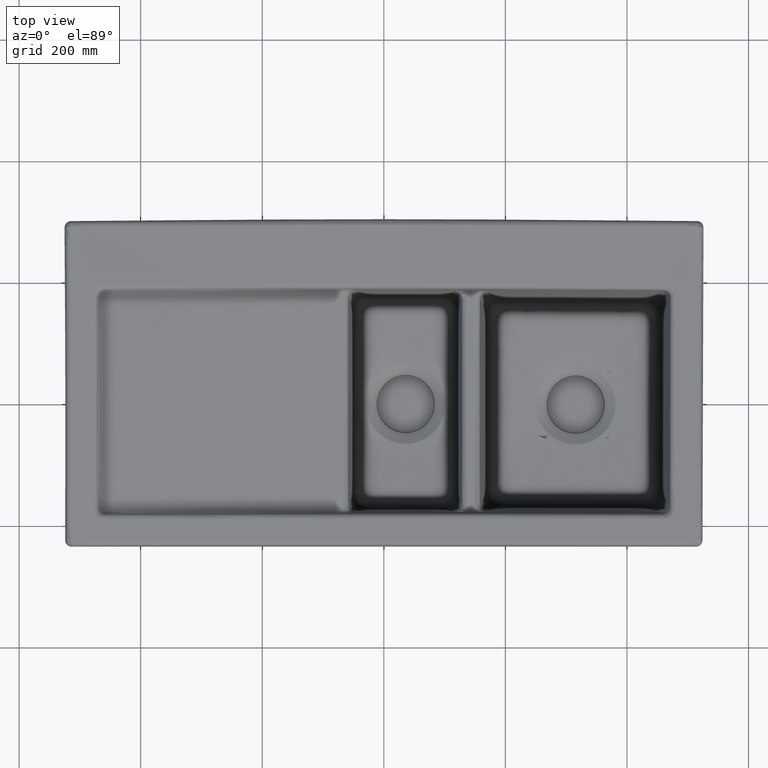
[diagram: clean part render]
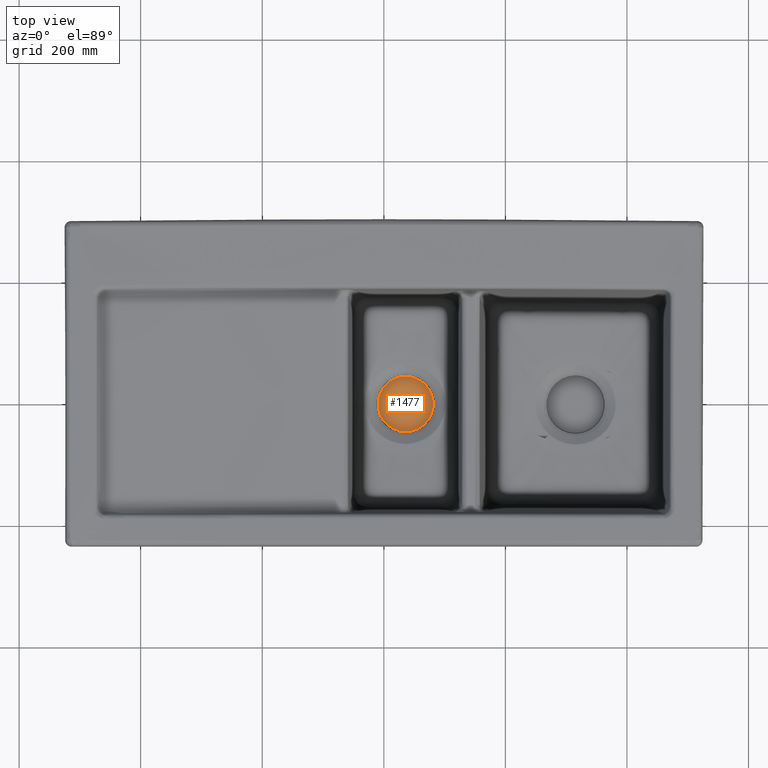
[diagram: same view with one face highlighted and labeled with its STEP entity id]
A machine part, top view. The second image highlights one B-rep face of the part: STEP entity #1477.
In plain terms, the highlighted planar face has unit normal (0, 0, 1).
Its self-contained STEP definition (entity closure, byte-faithful):
#1477=ADVANCED_FACE('',(#1877),#1717,.T.);
#1717=PLANE('',#6006);
#1877=FACE_OUTER_BOUND('',#2275,.T.);
#2275=EDGE_LOOP('',(#3260));
#3260=ORIENTED_EDGE('',*,*,#5360,.F.);
#4656=VERTEX_POINT('',#17095);
#5360=EDGE_CURVE('',#4656,#4656,#5916,.T.);
#5916=CIRCLE('',#6005,45.534823939082);
#6005=AXIS2_PLACEMENT_3D('',#17094,#6144,#6145);
#6006=AXIS2_PLACEMENT_3D('',#17096,#6146,#6147);
#6144=DIRECTION('',(0.,0.,-1.));
#6145=DIRECTION('',(0.,1.,0.));
#6146=DIRECTION('',(0.,0.,1.));
#6147=DIRECTION('',(0.,1.,0.));
#17094=CARTESIAN_POINT('',(35.9341498792284,-1.15172999477729E-8,-162.707550891354));
#17095=CARTESIAN_POINT('',(35.9341498792284,45.5348239275647,-162.707550891354));
#17096=CARTESIAN_POINT('',(35.9341498792284,-1.15172999477729E-8,-162.707550891354));